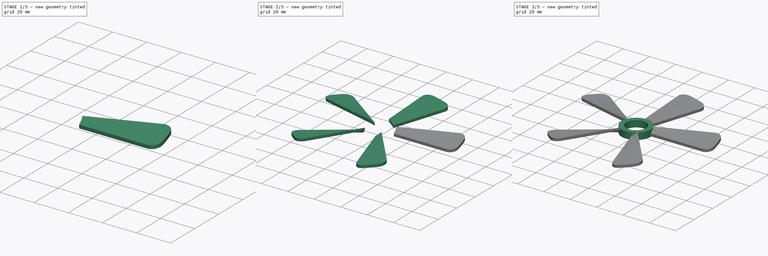
[diagram: build sequence overview — one tinted view per stage of 3, left to right]
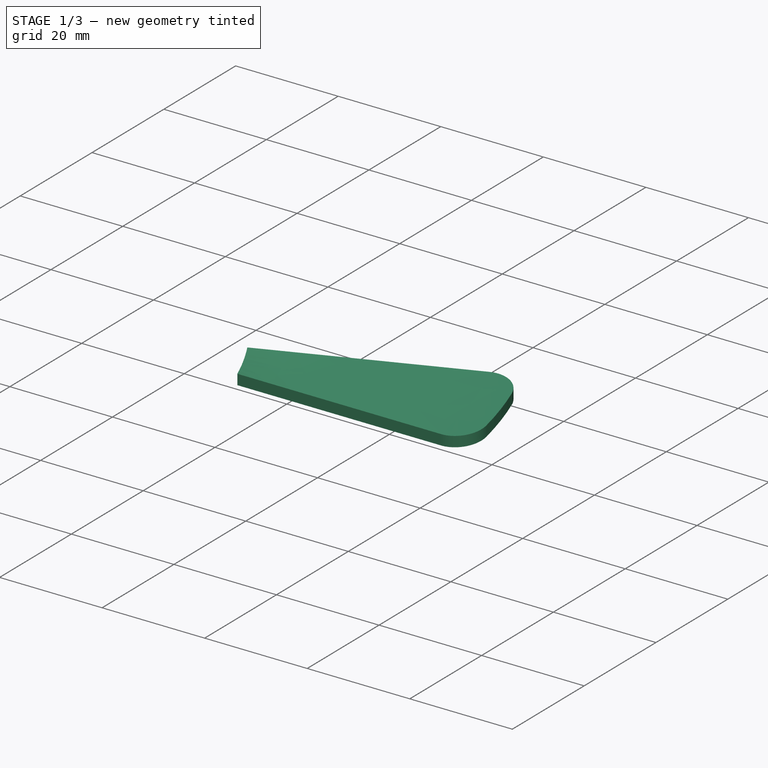
[diagram: stage 1 of 3 — iso view after this stage's code; geometry added in this stage tinted green]
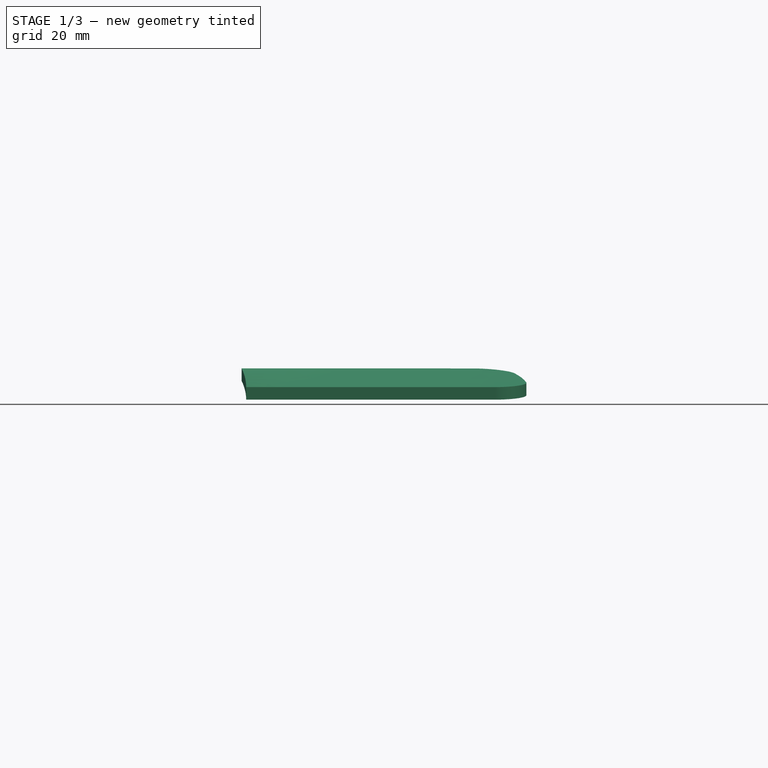
[diagram: stage 1 of 3 — front view after this stage's code; geometry added in this stage tinted green]
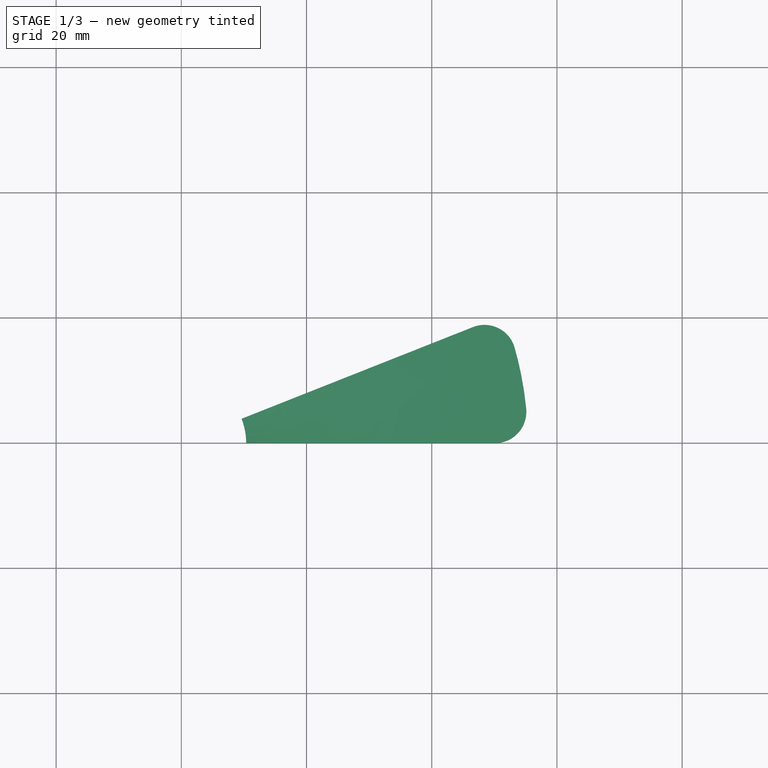
[diagram: stage 1 of 3 — top view after this stage's code; geometry added in this stage tinted green]
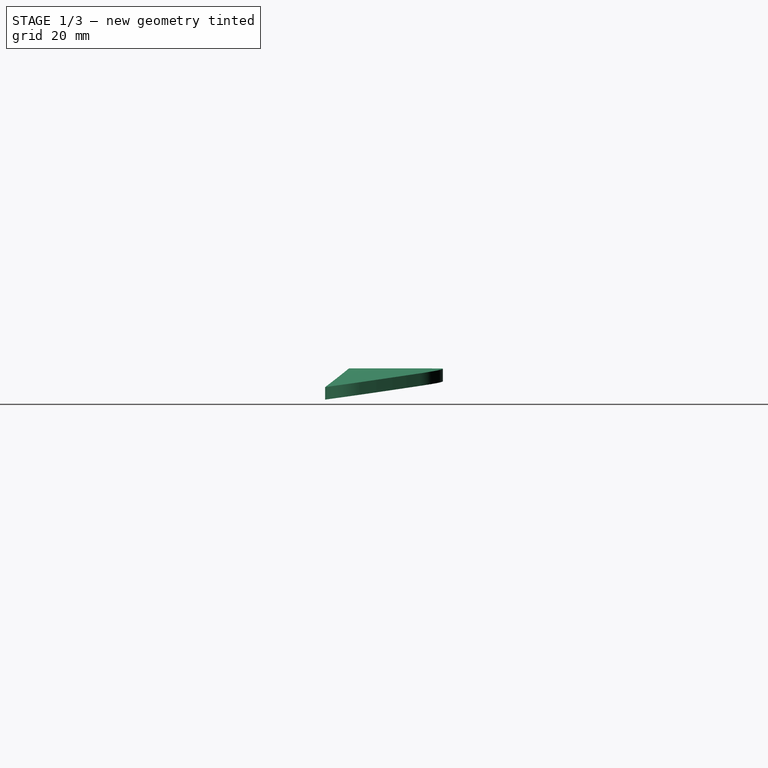
[diagram: stage 1 of 3 — right view after this stage's code; geometry added in this stage tinted green]
FCSTD DOCUMENT  (FreeCAD 0.17R13541 (Git))
Label: propeller2
License: All rights reserved
LicenseURL: http://en.wikipedia.org/wiki/All_rights_reserved
objects: Sketcher::SketchObject×3, PartDesign::Pad×1, PartDesign::Pocket×1, PartDesign::Body×1, Part::Helix×1, Part::Sweep×1, Part::Fillet×1, Part::FeaturePython×1
note: 12 computed .brp shape members not serialized (recipe doc carries the construction recipe); baked Part::Feature solids carry a one-line shape summary decoded from their .brp

FEATURE [PartDesign::Body] Body
  Group = -> [Sketch,Sketch001,Pad,Pocket]
  Origin = -> Origin
  Tip = -> Pocket
FEATURE [Part::Helix] Helix
  Angle = 0
  AttacherType = Attacher::AttachEngine3D
  Height = 3
  LocalCoord = 0
  Pitch = 50
  Radius = 12
  Style = 1
FEATURE [Sketcher::SketchObject] Sketch002  label="Blatt"
  MapMode = 3
  Placement = pos=(0,0,0) rot=(1,0,0;1.5708rad)
  Support = -> [Helix]
  sketch-geometry (4):
    g0: LineSegment StartX=10.3628 StartY=2.32952 StartZ=0 EndX=55.3628 EndY=2.32952 EndZ=0
    g1: LineSegment StartX=55.3628 StartY=2.32952 StartZ=0 EndX=55.3628 EndY=0.329515 EndZ=0
    g2: LineSegment StartX=55.3628 StartY=0.329515 StartZ=0 EndX=10.3628 EndY=0.329515 EndZ=0
    g3: LineSegment StartX=10.3628 StartY=0.329515 StartZ=0 EndX=10.3628 EndY=2.32952 EndZ=0
  constraints (10):
    c: Coincident(g0,g1)
    c: Coincident(g1,g2)
    c: Coincident(g2,g3)
    c: Coincident(g3,g0)
    c: Horizontal(g0)
    c: Horizontal(g2)
    c: Vertical(g1)
    c: Vertical(g3)
    c: DistanceX(g0,g0) = 45
    c: DistanceY(g1,g0) = 2
FEATURE [Part::Sweep] Sweep
  Frenet = true
  Sections = -> [Sketch002]
  Solid = true
  Spine = -> Helix [Edge1]
  Transition = 1
FEATURE [Part::Fillet] Fillet
  Base = -> Sweep
  Edges = 2 edges r=5: [Edge5,Edge7]
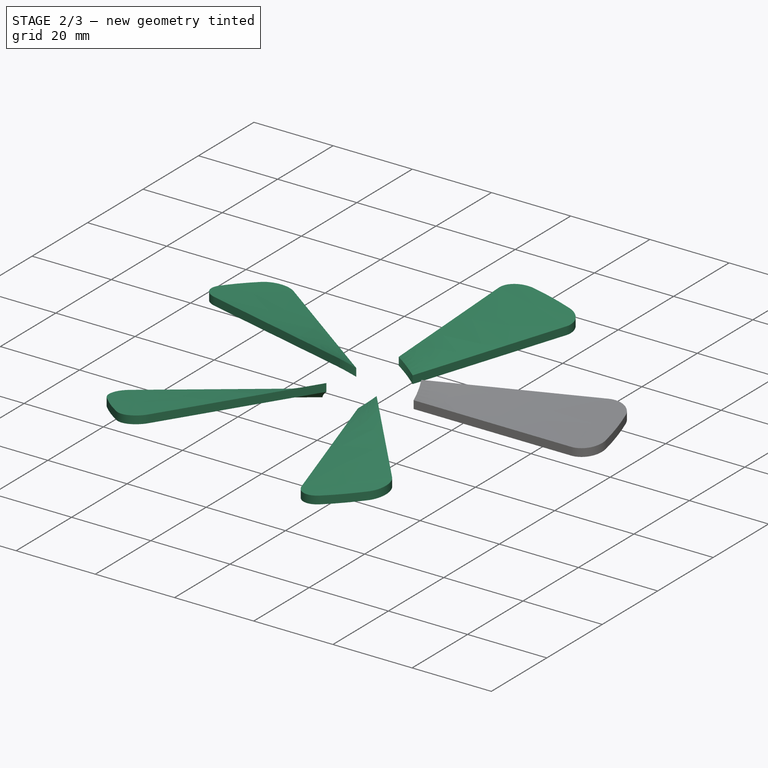
[diagram: stage 2 of 3 — iso view after this stage's code; geometry added in this stage tinted green]
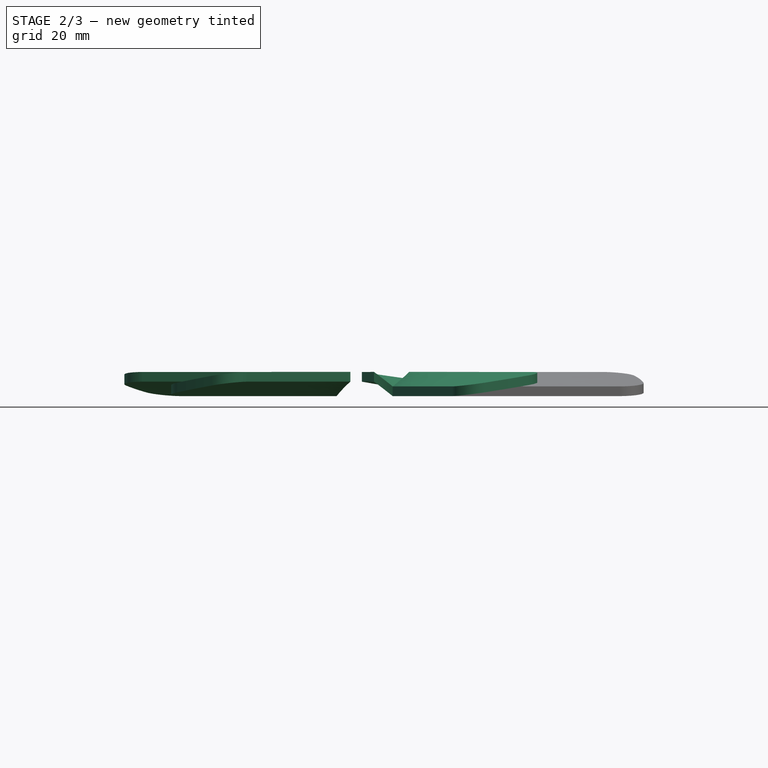
[diagram: stage 2 of 3 — front view after this stage's code; geometry added in this stage tinted green]
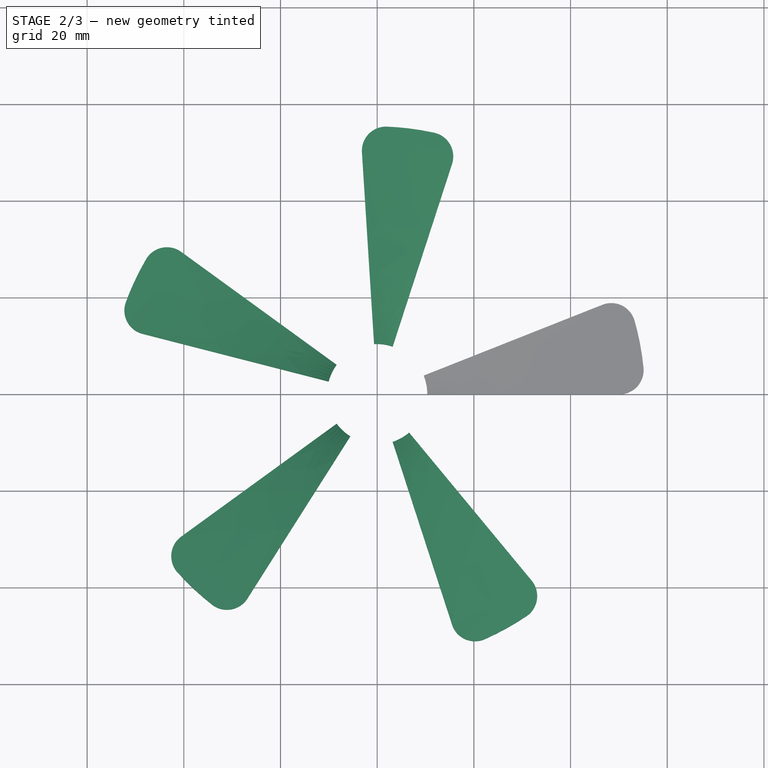
[diagram: stage 2 of 3 — top view after this stage's code; geometry added in this stage tinted green]
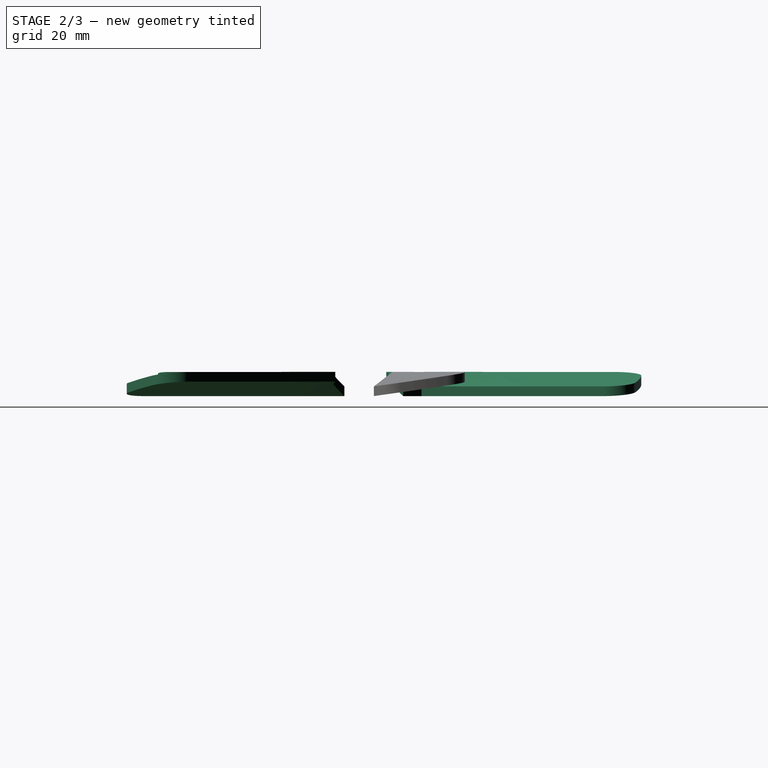
[diagram: stage 2 of 3 — right view after this stage's code; geometry added in this stage tinted green]
FEATURE [Part::FeaturePython] Array  # Draft array (typed FeaturePython)
  Angle = 360
  ArrayType = 1
  Axis = (0,0,1)
  Base = -> Fillet
  Center = (0,0,0)
  Fuse = false
  IntervalAxis = (0,0,0)
  IntervalX = (1,0,0)
  IntervalY = (0,1,0)
  IntervalZ = (0,0,0)
  NumberPolar = 5
  NumberX = 1
  NumberY = 1
  NumberZ = 1
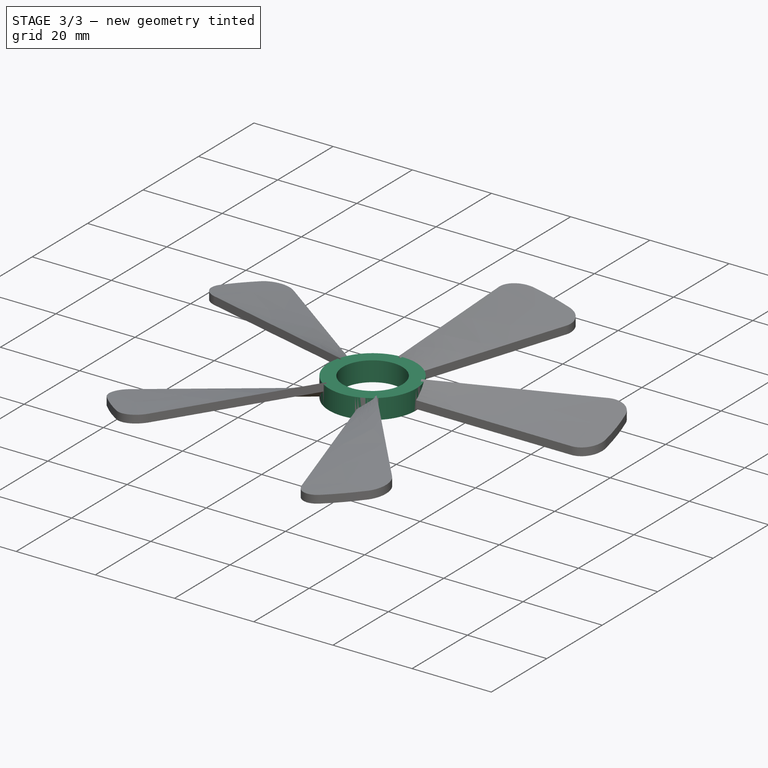
[diagram: stage 3 of 3 — iso view after this stage's code; geometry added in this stage tinted green]
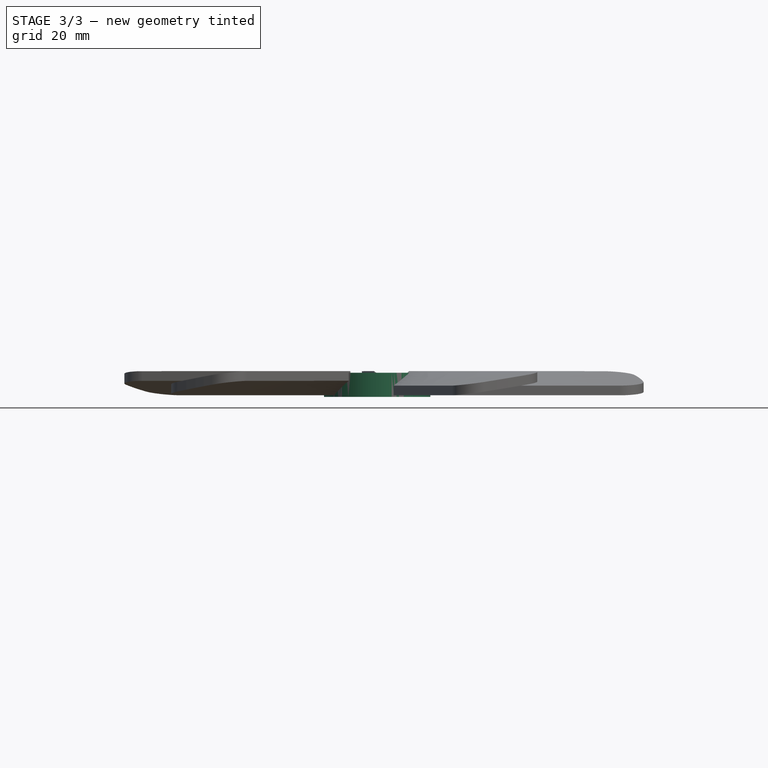
[diagram: stage 3 of 3 — front view after this stage's code; geometry added in this stage tinted green]
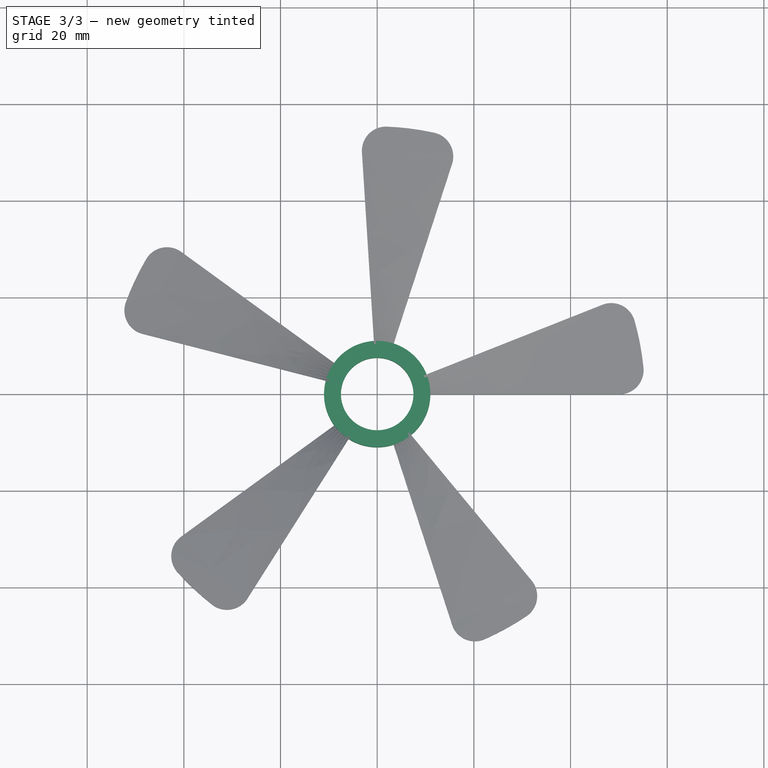
[diagram: stage 3 of 3 — top view after this stage's code; geometry added in this stage tinted green]
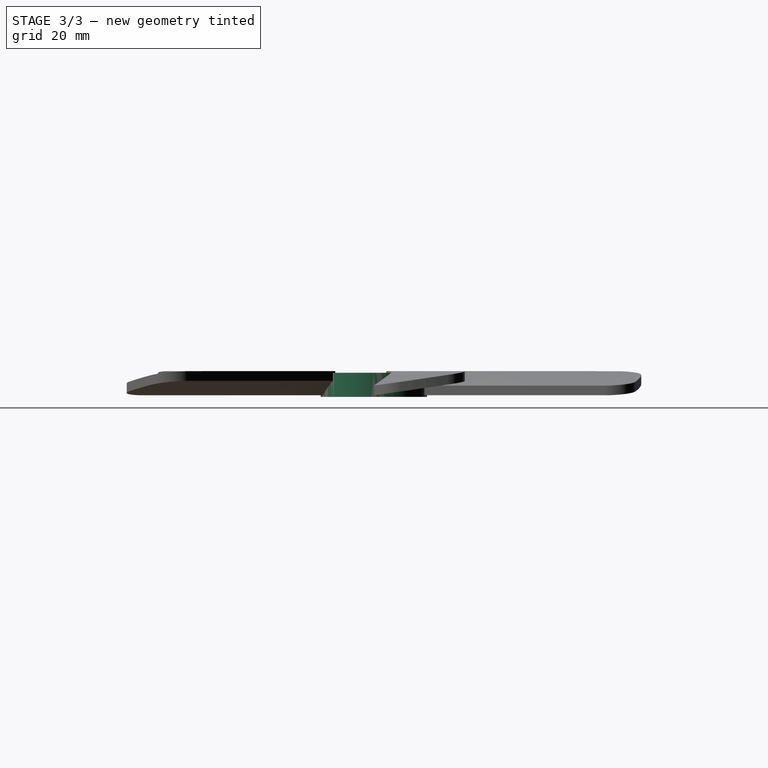
[diagram: stage 3 of 3 — right view after this stage's code; geometry added in this stage tinted green]
FEATURE [Sketcher::SketchObject] Sketch  label="Bohrung"
  MapMode = 5
  Support = -> [XY_Plane]
  sketch-geometry (1):
    g0: Circle CenterX=0 CenterY=0 CenterZ=0 NormalX=0 NormalY=0 NormalZ=1 AngleXU=0 Radius=7.5
  constraints (2):
    c: Coincident(g0,g-1)
    c: Radius(g0) = 7.5
FEATURE [Sketcher::SketchObject] Sketch001  label="Narbe"
  MapMode = 5
  Support = -> [XY_Plane]
  sketch-geometry (1):
    g0: Circle CenterX=0 CenterY=0 CenterZ=0 NormalX=0 NormalY=0 NormalZ=1 AngleXU=0 Radius=11
  constraints (2):
    c: Coincident(g0,g-1)
    c: Radius(g0) = 11
FEATURE [PartDesign::Pad] Pad
  Length = 5
  Length2 = 100
  Profile = -> Sketch001
  Type = 0
FEATURE [PartDesign::Pocket] Pocket
  BaseFeature = -> Pad
  Length = 2
  Length2 = 100
  Profile = -> Sketch
  Reversed = true
  Type = 1
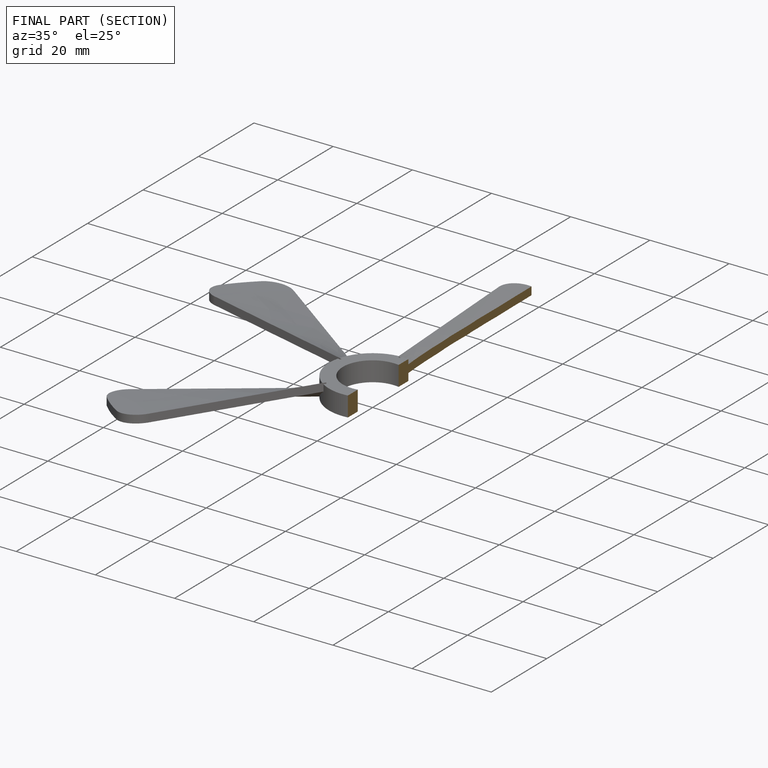
[diagram: finished part — half-section view (interior)]
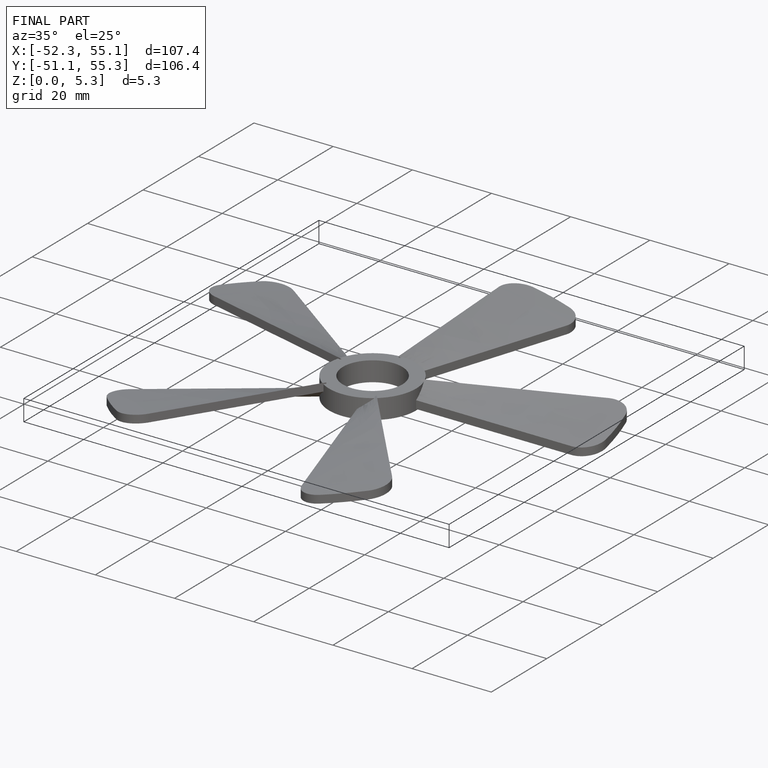
[diagram: finished part — iso view with bounding-box wireframe]
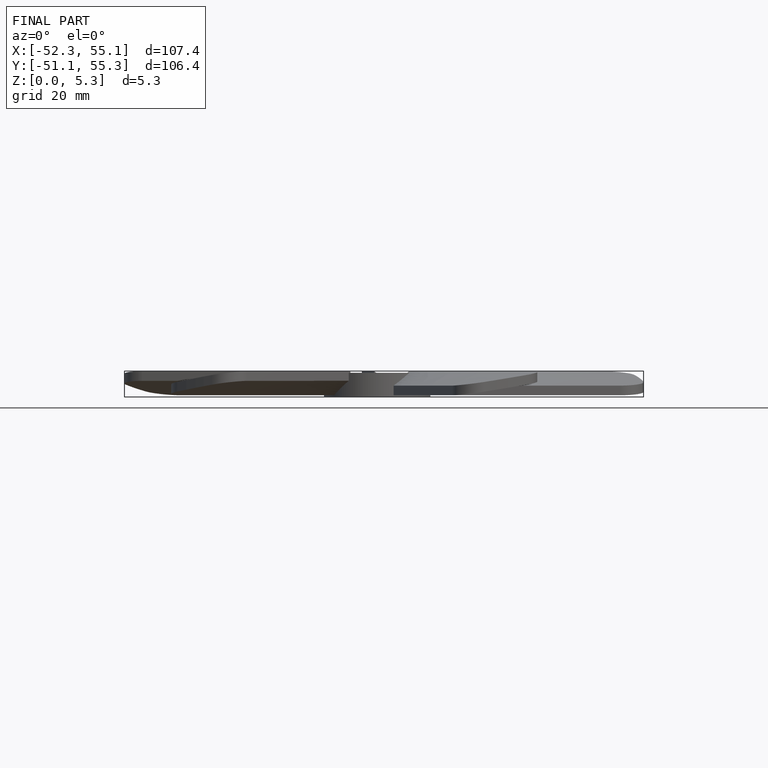
[diagram: finished part — front view with bounding-box wireframe]
